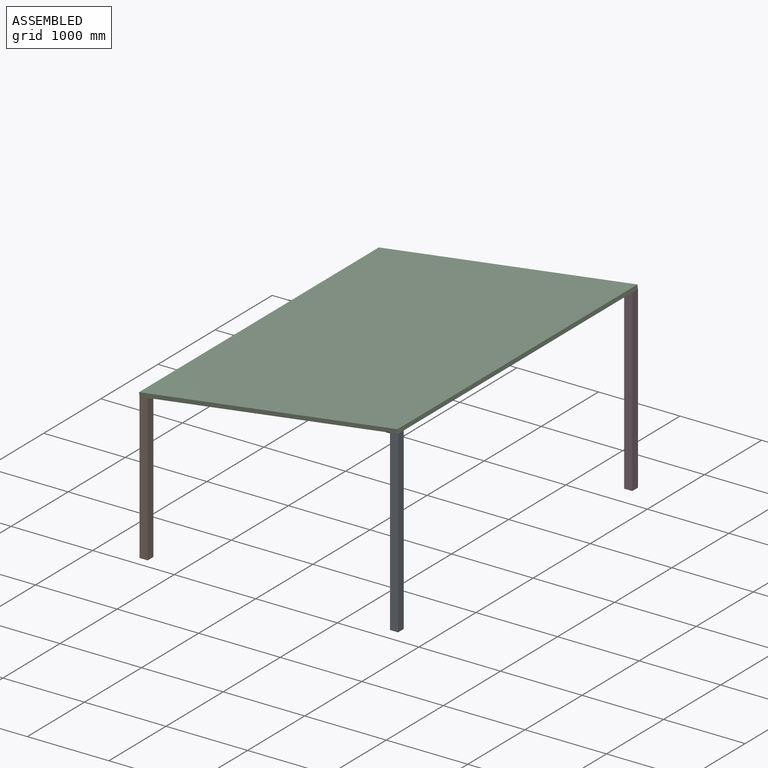
[diagram: assembled view]
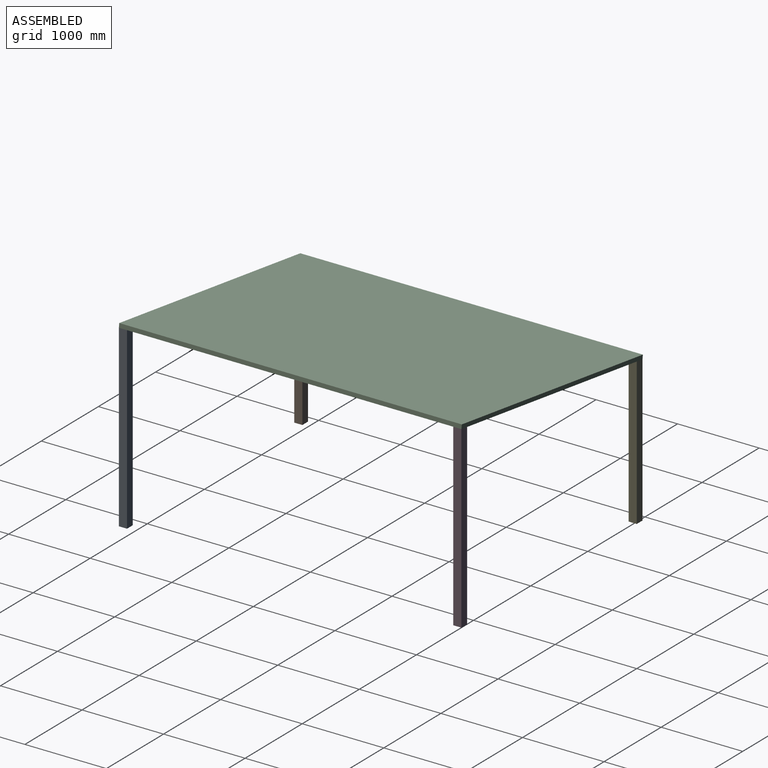
[diagram: assembled view, second angle]
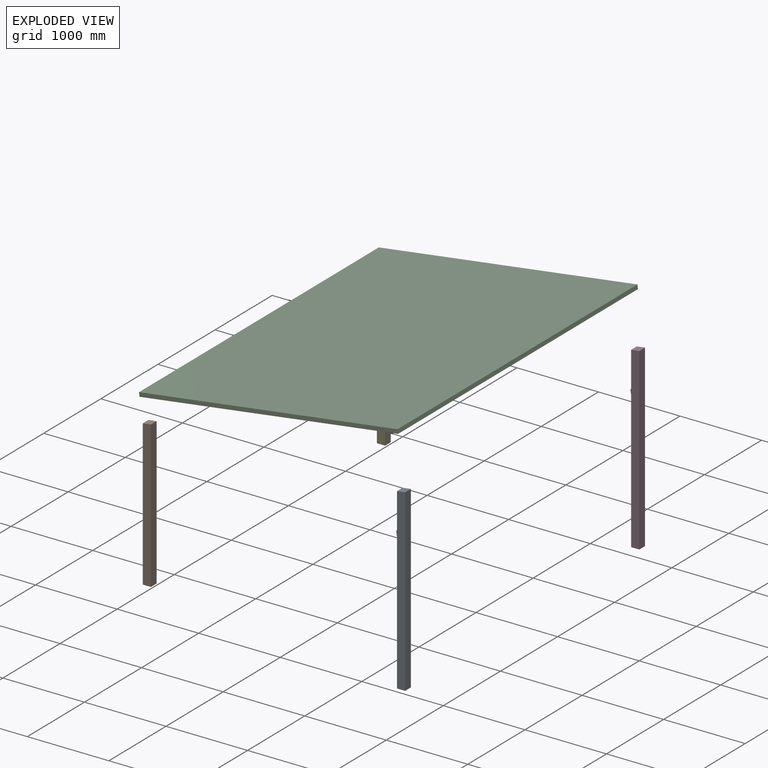
[diagram: exploded view]
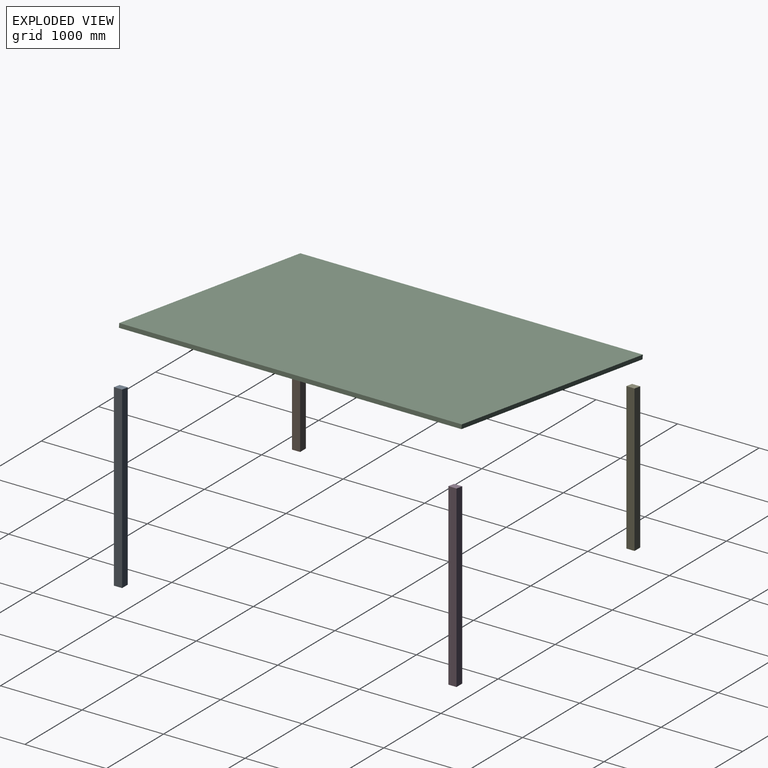
[diagram: exploded view, second angle]
ASSEMBLY  parts=5 mates=4
PART A: 6 faces, bbox 100x100x2200 mm
  f0: plane 2200x100mm, normal (1,0,0), area 220000mm2, adj f2,f3,f4,f5
  f1: plane 2186.21x100mm, normal (-1,0,0), area 218620.7mm2, adj f2,f3,f4,f5
  f2: plane 100x100mm, normal (0,0,-1), area 10000mm2, adj f0,f1,f4,f5
  f3: plane 100x100mm, normal (-0.14,0,0.99), area 10094.7mm2, adj f0,f1,f4,f5
  f4: plane 2200x100mm, normal (0,-1,0), area 219310.3mm2, adj f0,f1,f2,f3
  f5: plane 2200x100mm, normal (0,1,0), area 219310.3mm2, adj f0,f1,f2,f3
PART B: 6 faces, bbox 100x100x1800 mm
  f0: plane 1800x100mm, normal (1,0,0), area 180000mm2, adj f2,f3,f4,f5
  f1: plane 1786.21x100mm, normal (-1,0,0), area 178620.7mm2, adj f2,f3,f4,f5
  f2: plane 100x100mm, normal (0,0,-1), area 10000mm2, adj f0,f1,f4,f5
  f3: plane 100x100mm, normal (-0.14,0,0.99), area 10094.7mm2, adj f0,f1,f4,f5
  f4: plane 1800x100mm, normal (0,-1,0), area 179310.3mm2, adj f0,f1,f2,f3
  f5: plane 1800x100mm, normal (0,1,0), area 179310.3mm2, adj f0,f1,f2,f3
PART C: 6 faces, bbox 3176.8x4200x486.8 mm
  f0: plane 3176.82x486.77mm, normal (0,1,0), area 160000mm2, adj f1,f3,f4,f5
  f1: plane 4200x49.53mm, normal (-0.99,0,-0.14), area 210000mm2, adj f0,f2,f4,f5
  f2: plane 3176.82x486.77mm, normal (0,-1,0), area 160000mm2, adj f1,f3,f4,f5
  f3: plane 4200x49.53mm, normal (0.99,0,0.14), area 210000mm2, adj f0,f2,f4,f5
  f4: plane 4200x3169.99mm, normal (-0.14,0,0.99), area 13440000mm2, adj f0,f1,f2,f3
  f5: plane 4200x3169.99mm, normal (0.14,0,-0.99), area 13440000mm2, adj f0,f1,f2,f3
PART D: 6 faces, bbox 100x100x2200 mm
  f0: plane 2200x100mm, normal (0,1,0), area 219310.3mm2, adj f1,f2,f3,f4
  f1: plane 100x100mm, normal (-0.14,0,0.99), area 10094.7mm2, adj f0,f2,f3,f5
  f2: plane 2186.21x100mm, normal (-1,0,0), area 218620.7mm2, adj f0,f1,f4,f5
  f3: plane 2200x100mm, normal (1,0,0), area 220000mm2, adj f0,f1,f4,f5
  f4: plane 100x100mm, normal (0,0,-1), area 10000mm2, adj f0,f2,f3,f5
  f5: plane 2200x100mm, normal (0,-1,0), area 219310.3mm2, adj f1,f2,f3,f4
PART E: 6 faces, bbox 100x100x1800 mm
  f0: plane 1800x100mm, normal (0,1,0), area 179310.3mm2, adj f1,f2,f3,f4
  f1: plane 100x100mm, normal (-0.14,0,0.99), area 10094.7mm2, adj f0,f2,f3,f5
  f2: plane 1786.21x100mm, normal (-1,0,0), area 178620.7mm2, adj f0,f1,f4,f5
  f3: plane 1800x100mm, normal (1,0,0), area 180000mm2, adj f0,f1,f4,f5
  f4: plane 100x100mm, normal (0,0,-1), area 10000mm2, adj f0,f2,f3,f5
  f5: plane 1800x100mm, normal (0,-1,0), area 179310.3mm2, adj f1,f2,f3,f4
PLACE A t=(-2319.6,774.39,-277.55)mm
PLACE B t=(-2489.59,774.39,-300.99)mm
PLACE C t=(-2418.66,874.39,-291.21)mm
PLACE D t=(-2319.6,974.39,-277.55)mm
PLACE E t=(-2489.59,974.39,-300.99)mm
MATE fastened D.f1 <-> C.f5  axis (-0.14,0,0.99) through (-396.54,974.39,863.22)mm
MATE fastened E.f1 <-> C.f5  axis (-0.14,0,0.99) through (-3566.52,974.39,425.98)mm
MATE fastened C.f5 <-> A.f3  axis (0.14,0,-0.99) through (-396.54,-3225.61,863.22)mm
MATE fastened B.f3 <-> C.f5  axis (-0.14,0,0.99) through (-3566.52,-3225.61,425.98)mm
